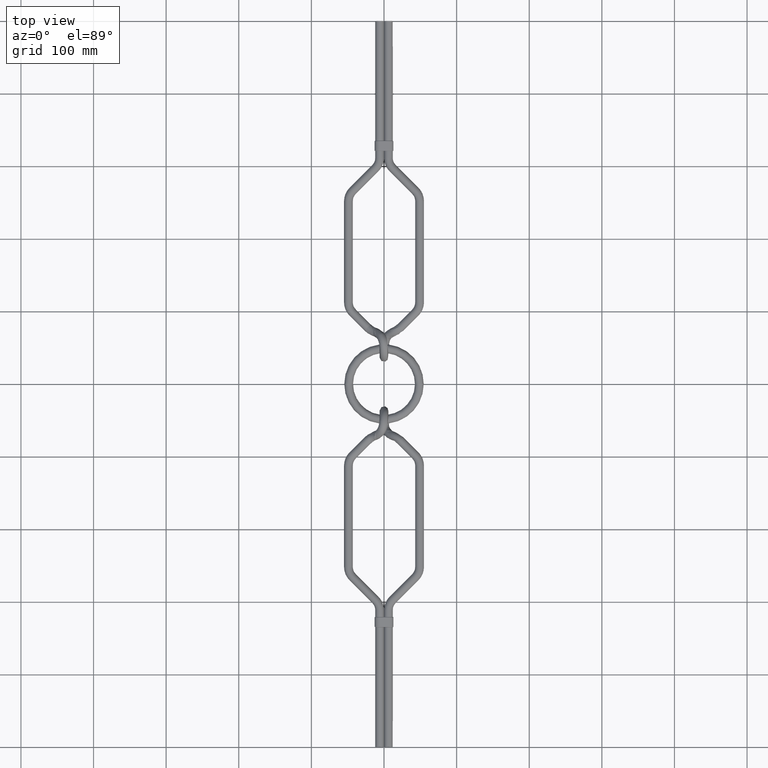
[diagram: clean part render]
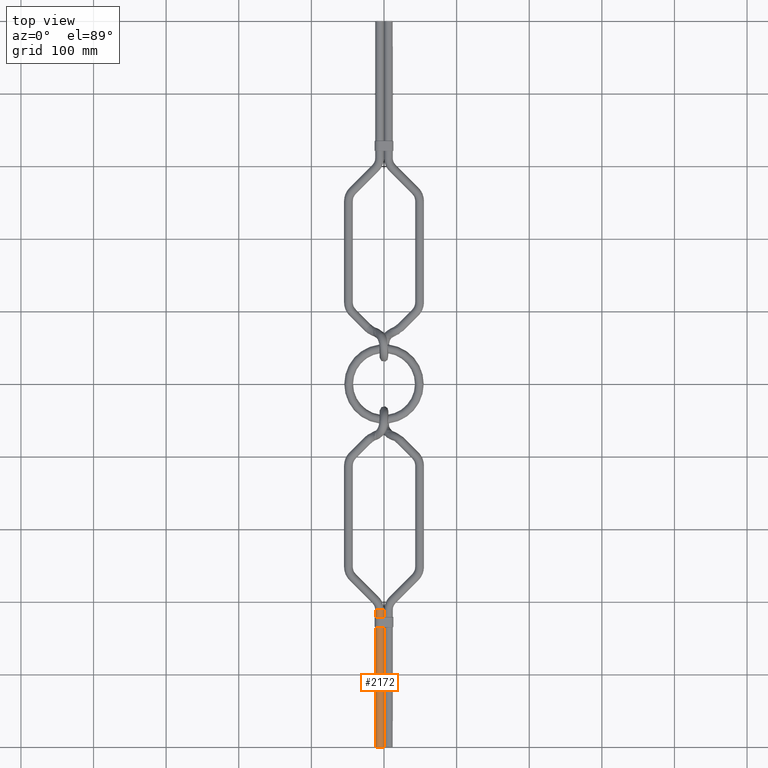
[diagram: same view with one face highlighted and labeled with its STEP entity id]
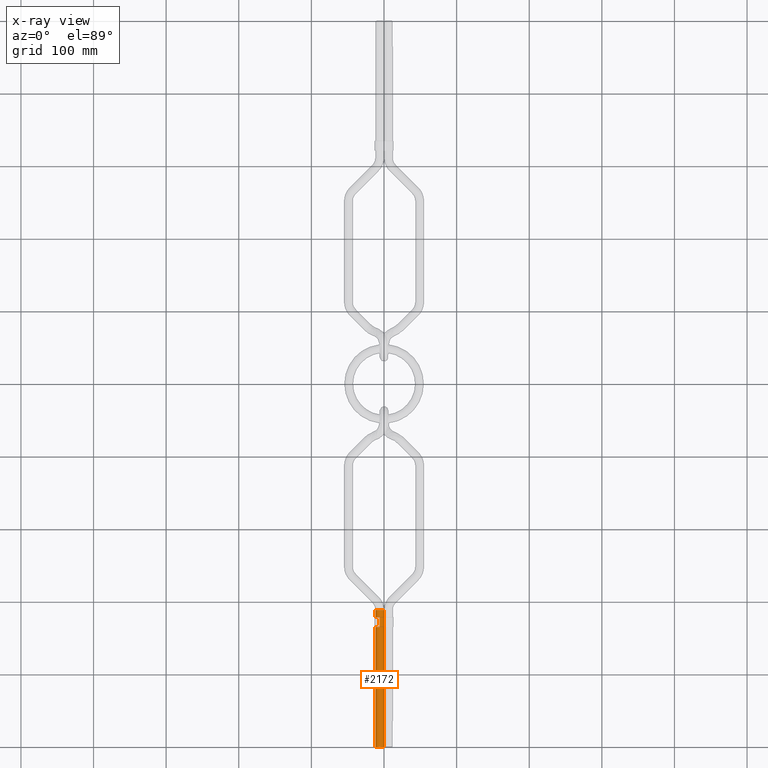
[diagram: x-ray of the same camera — body ghosted, the highlighted face saturated]
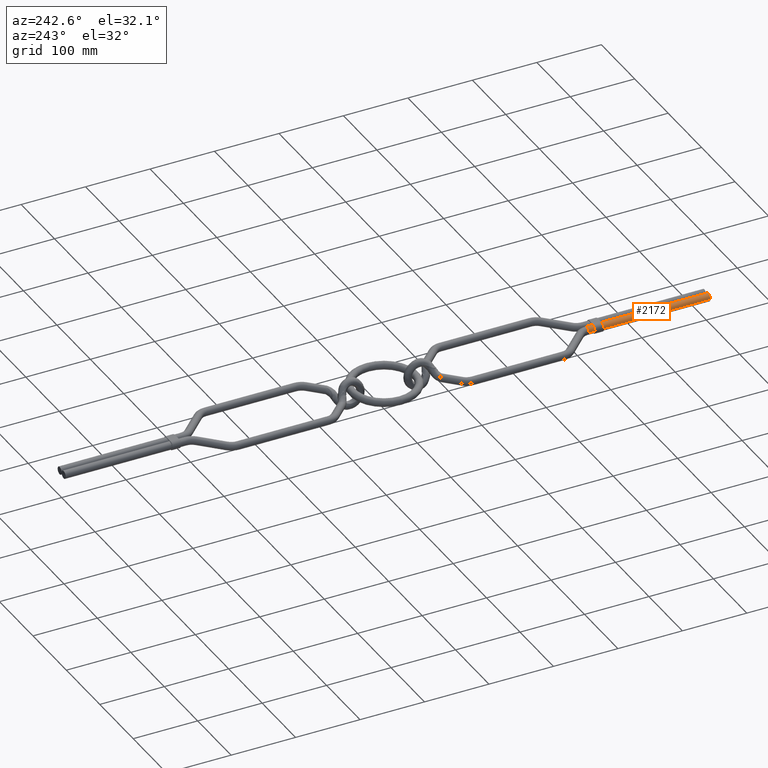
[diagram: same view with one face highlighted and labeled with its STEP entity id]
A machine part, top view. The second image highlights one B-rep face of the part: STEP entity #2172.
The next image is the same camera in x-ray: the body ghosted, the highlighted face saturated — about 0% of this face is hidden behind the body in this view.
A second angle (auxiliary view) of the same face is appended — the face is thin or edge-on in the first view.
In plain terms, the highlighted cylindrical surface (edge-blend (fillet) strip) has radius 6 mm, axis along (-0, -1, -0).
Its self-contained STEP definition (entity closure, byte-faithful):
#145 = LINE ( 'NONE', #1031, #10216 ) ;
#268 = CARTESIAN_POINT ( 'NONE',  ( -6.000000000000001800, 165.0000000000000000, 0.0000000000000000000 ) ) ;
#430 = LINE ( 'NONE', #3866, #14007 ) ;
#587 = DIRECTION ( 'NONE',  ( 1.000000000000000000, 0.0000000000000000000, 0.0000000000000000000 ) ) ;
#707 = EDGE_CURVE ( 'NONE', #5210, #2589, #16558, .T. ) ;
#1022 = EDGE_CURVE ( 'NONE', #11106, #2589, #145, .T. ) ;
#1031 = CARTESIAN_POINT ( 'NONE',  ( -6.000000000000001800, 179.0000000000000300, 6.000000000000002700 ) ) ;
#1083 = ORIENTED_EDGE ( 'NONE', *, *, #1022, .T. ) ;
#1593 = DIRECTION ( 'NONE',  ( 0.0000000000000000000, 0.0000000000000000000, 1.000000000000000000 ) ) ;
#2172 = ADVANCED_FACE ( 'NONE', ( #5488 ), #8566, .T. ) ;
#2589 = VERTEX_POINT ( 'NONE', #10940 ) ;
#2896 = VECTOR ( 'NONE', #5894, 1000.000000000000000 ) ;
#3750 = CIRCLE ( 'NONE', #16905, 6.000000000000000900 ) ;
#3866 = CARTESIAN_POINT ( 'NONE',  ( -12.00000000000000000, 188.5142448035550200, 7.347880794884120700E-016 ) ) ;
#4108 = CARTESIAN_POINT ( 'NONE',  ( -6.000000000000000000, 0.0000000000000000000, 0.0000000000000000000 ) ) ;
#4416 = EDGE_CURVE ( 'NONE', #12672, #11847, #16532, .T. ) ;
#4619 = CARTESIAN_POINT ( 'NONE',  ( -12.00000000000000000, 188.5142448035550200, 7.347880794884119700E-016 ) ) ;
#5207 = ORIENTED_EDGE ( 'NONE', *, *, #4416, .T. ) ;
#5210 = VERTEX_POINT ( 'NONE', #14793 ) ;
#5398 = CIRCLE ( 'NONE', #12535, 6.000000000000000900 ) ;
#5446 = DIRECTION ( 'NONE',  ( 0.0000000000000000000, 0.0000000000000000000, 1.000000000000000000 ) ) ;
#5488 = FACE_OUTER_BOUND ( 'NONE', #14632, .T. ) ;
#5894 = DIRECTION ( 'NONE',  ( -9.202081666478360000E-018, -1.000000000000000000, -0.0000000000000000000 ) ) ;
#5989 = VERTEX_POINT ( 'NONE', #12307 ) ;
#6293 = CARTESIAN_POINT ( 'NONE',  ( -12.00000000000000200, 0.0000000000000000000, 7.347880794884122700E-016 ) ) ;
#6320 = CARTESIAN_POINT ( 'NONE',  ( -5.999999999999998200, 188.5142448035550200, 0.0000000000000000000 ) ) ;
#6511 = VERTEX_POINT ( 'NONE', #6293 ) ;
#7505 = ORIENTED_EDGE ( 'NONE', *, *, #13539, .F. ) ;
#7619 = CARTESIAN_POINT ( 'NONE',  ( -6.000000000000001800, 179.0000000000000300, 0.0000000000000000000 ) ) ;
#7633 = DIRECTION ( 'NONE',  ( 0.0000000000000000000, 0.0000000000000000000, 1.000000000000000000 ) ) ;
#7974 = EDGE_CURVE ( 'NONE', #5210, #6511, #430, .T. ) ;
#8187 = CARTESIAN_POINT ( 'NONE',  ( -12.00000000000000000, 188.5142448035550200, 7.347880794884120700E-016 ) ) ;
#8566 = CYLINDRICAL_SURFACE ( 'NONE', #15856, 6.000000000000000900 ) ;
#8872 = ORIENTED_EDGE ( 'NONE', *, *, #16966, .T. ) ;
#8905 = DIRECTION ( 'NONE',  ( -0.0000000000000000000, -1.000000000000000000, -0.0000000000000000000 ) ) ;
#8937 = DIRECTION ( 'NONE',  ( 0.0000000000000000000, 0.0000000000000000000, 1.000000000000000000 ) ) ;
#9447 = DIRECTION ( 'NONE',  ( 0.0000000000000000000, 1.000000000000000000, 0.0000000000000000000 ) ) ;
#9501 = DIRECTION ( 'NONE',  ( -9.202081666478360000E-018, -1.000000000000000000, -0.0000000000000000000 ) ) ;
#9651 = CARTESIAN_POINT ( 'NONE',  ( -5.999999999999998200, 188.5142448035550200, 0.0000000000000000000 ) ) ;
#9766 = DIRECTION ( 'NONE',  ( -9.202081666478360000E-018, -1.000000000000000000, -0.0000000000000000000 ) ) ;
#10216 = VECTOR ( 'NONE', #8905, 1000.000000000000000 ) ;
#10702 = AXIS2_PLACEMENT_3D ( 'NONE', #268, #9447, #1593 ) ;
#10940 = CARTESIAN_POINT ( 'NONE',  ( -6.000000000000001800, 165.0000000000000000, 6.000000000000002700 ) ) ;
#11106 = VERTEX_POINT ( 'NONE', #13601 ) ;
#11700 = EDGE_CURVE ( 'NONE', #11847, #11106, #16450, .T. ) ;
#11837 = ORIENTED_EDGE ( 'NONE', *, *, #16843, .F. ) ;
#11847 = VERTEX_POINT ( 'NONE', #14575 ) ;
#12307 = CARTESIAN_POINT ( 'NONE',  ( 3.469446951953614200E-015, 188.5142448035550200, 0.0000000000000000000 ) ) ;
#12535 = AXIS2_PLACEMENT_3D ( 'NONE', #6320, #15478, #7633 ) ;
#12630 = AXIS2_PLACEMENT_3D ( 'NONE', #7619, #16764, #8937 ) ;
#12672 = VERTEX_POINT ( 'NONE', #4619 ) ;
#12967 = LINE ( 'NONE', #13745, #2896 ) ;
#13050 = DIRECTION ( 'NONE',  ( -9.202081666478360000E-018, -1.000000000000000000, -0.0000000000000000000 ) ) ;
#13295 = DIRECTION ( 'NONE',  ( 0.0000000000000000000, 1.000000000000000000, 0.0000000000000000000 ) ) ;
#13539 = EDGE_CURVE ( 'NONE', #5989, #13958, #12967, .T. ) ;
#13601 = CARTESIAN_POINT ( 'NONE',  ( -6.000000000000001800, 179.0000000000000300, 6.000000000000002700 ) ) ;
#13745 = CARTESIAN_POINT ( 'NONE',  ( 2.602085213965210600E-015, 188.5142448035550200, 0.0000000000000000000 ) ) ;
#13958 = VERTEX_POINT ( 'NONE', #14354 ) ;
#14007 = VECTOR ( 'NONE', #13050, 1000.000000000000000 ) ;
#14354 = CARTESIAN_POINT ( 'NONE',  ( 8.673617379884035500E-016, 0.0000000000000000000, 0.0000000000000000000 ) ) ;
#14575 = CARTESIAN_POINT ( 'NONE',  ( -12.00000000000000400, 179.0000000000000300, 7.347880794884124700E-016 ) ) ;
#14632 = EDGE_LOOP ( 'NONE', ( #11837, #5207, #14873, #1083, #15392, #14834, #8872, #7505 ) ) ;
#14793 = CARTESIAN_POINT ( 'NONE',  ( -12.00000000000000400, 165.0000000000000000, 7.347880794884124700E-016 ) ) ;
#14834 = ORIENTED_EDGE ( 'NONE', *, *, #7974, .T. ) ;
#14873 = ORIENTED_EDGE ( 'NONE', *, *, #11700, .T. ) ;
#15392 = ORIENTED_EDGE ( 'NONE', *, *, #707, .F. ) ;
#15478 = DIRECTION ( 'NONE',  ( 0.0000000000000000000, 1.000000000000000000, 0.0000000000000000000 ) ) ;
#15711 = VECTOR ( 'NONE', #9501, 1000.000000000000000 ) ;
#15856 = AXIS2_PLACEMENT_3D ( 'NONE', #9651, #9766, #587 ) ;
#16450 = CIRCLE ( 'NONE', #12630, 6.000000000000002700 ) ;
#16532 = LINE ( 'NONE', #8187, #15711 ) ;
#16558 = CIRCLE ( 'NONE', #10702, 6.000000000000002700 ) ;
#16764 = DIRECTION ( 'NONE',  ( 0.0000000000000000000, 1.000000000000000000, 0.0000000000000000000 ) ) ;
#16843 = EDGE_CURVE ( 'NONE', #12672, #5989, #5398, .T. ) ;
#16905 = AXIS2_PLACEMENT_3D ( 'NONE', #4108, #13295, #5446 ) ;
#16966 = EDGE_CURVE ( 'NONE', #6511, #13958, #3750, .T. ) ;